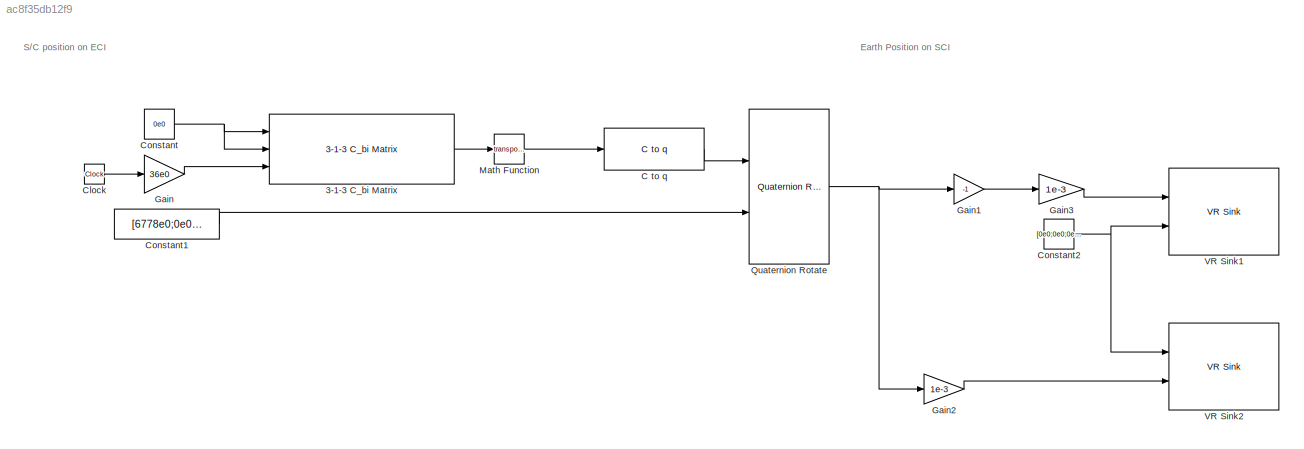
MODEL slx_ac8f35db12f9
KIND model
CONFIG AbsTol = auto
CONFIG EnableMultiTasking = off
CONFIG FixedStep = auto
CONFIG MaxStep = auto
CONFIG MinStep = auto
CONFIG RelTol = 1e-3
CONFIG SampleTimeConstraint = Unconstrained
CONFIG Solver = VariableStepAuto
CONFIG SolverName = VariableStepAuto
CONFIG StartTime = 0.0
CONFIG StopTime = 10.0
BLOCK [Reference] 3-1-3 C_bi Matrix  REF=blocklib/3-1-3 C_bi Matrix  (lib defined in mdl_0f6d77dcc548, slx_4f395834c8e9, +4 more)
  Ports = [3, 1]
  SourceBlock = blocklib/3-1-3 C_bi Matrix
  SourceProductName = Custom Library
  Tag = text(.05,.5,'{\itEquation:}  \Sigma \alpha^2 + \n\beta^2 \rightarrow \infty, \Pi, \phi_3 = {\bfcool}', \n'hor','left','texmode','on')
BLOCK [Reference] C to q  REF=blocklib/C to q  (lib defined in mdl_0f6d77dcc548, slx_4f395834c8e9, +4 more)
  Ports = [1, 1]
  SourceBlock = blocklib/C to q
  SourceProductName = Custom Library
BLOCK [Clock] Clock
BLOCK [Constant] Constant
  Value = 0e0
BLOCK [Constant] Constant1
  Value = [6778e0;0e0;0e0]
BLOCK [Constant] Constant2
  Value = [0e0;0e0;0e0]
BLOCK [Gain] Gain
  Gain = 36e0
  OutDataTypeStr = Inherit: Inherit via internal rule
  ParamDataTypeStr = Inherit: Inherit via internal rule
  SaturateOnIntegerOverflow = off
BLOCK [Gain] Gain1
  Gain = -1
  OutDataTypeStr = Inherit: Inherit via internal rule
  ParamDataTypeStr = Inherit: Inherit via internal rule
  SaturateOnIntegerOverflow = off
BLOCK [Gain] Gain2
  Gain = 1e-3
  OutDataTypeStr = Inherit: Inherit via internal rule
  ParamDataTypeStr = Inherit: Inherit via internal rule
  SaturateOnIntegerOverflow = off
BLOCK [Gain] Gain3
  Gain = 1e-3
  OutDataTypeStr = Inherit: Inherit via internal rule
  ParamDataTypeStr = Inherit: Inherit via internal rule
  SaturateOnIntegerOverflow = off
BLOCK [Math] Math Function
  Operator = transpose
  Ports = [1, 1]
  SignedPower = off
BLOCK [Reference] Quaternion Rotate  REF=blocklib/Quaternion Rotate  (lib defined in mdl_0f6d77dcc548, slx_4f395834c8e9, +4 more)
  Ports = [2, 1]
  SourceBlock = blocklib/Quaternion Rotate
  SourceProductName = Custom Library
BLOCK [Reference] VR Sink1  REF=vrlib/VR Sink
  Commented = on
  InstantiateOnLoad = on
  Ports = [2]
  SourceBlock = vrlib/VR Sink
  SourceProductBaseCode = SL
  SourceProductName = Simulink
  SourceType = Virtual Reality Sink
BLOCK [Reference] VR Sink2  REF=vrlib/VR Sink
  InstantiateOnLoad = on
  Ports = [2]
  SourceBlock = vrlib/VR Sink
  SourceProductBaseCode = SL
  SourceProductName = Simulink
  SourceType = Virtual Reality Sink
ANNOTATION (root): Earth Position on SCI
ANNOTATION (root): S/C position on ECI
LINE 3-1-3 C_bi Matrix:1 -> Math Function:1
LINE C to q:1 -> Quaternion Rotate:1
LINE Clock:1 -> Gain:1
LINE Constant1:1 -> Quaternion Rotate:2
NET Constant2:1 -> VR Sink1:2, VR Sink2:1
NET Constant:1 -> 3-1-3 C_bi Matrix:1, 3-1-3 C_bi Matrix:2
LINE Gain1:1 -> Gain3:1
LINE Gain2:1 -> VR Sink2:2
LINE Gain3:1 -> VR Sink1:1
LINE Gain:1 -> 3-1-3 C_bi Matrix:3
LINE Math Function:1 -> C to q:1
NET Quaternion Rotate:1 -> Gain1:1, Gain2:1
note: NET lines group one-source signal fan-out (src -> all destinations, sorted); 1:1 wires keep LINE
